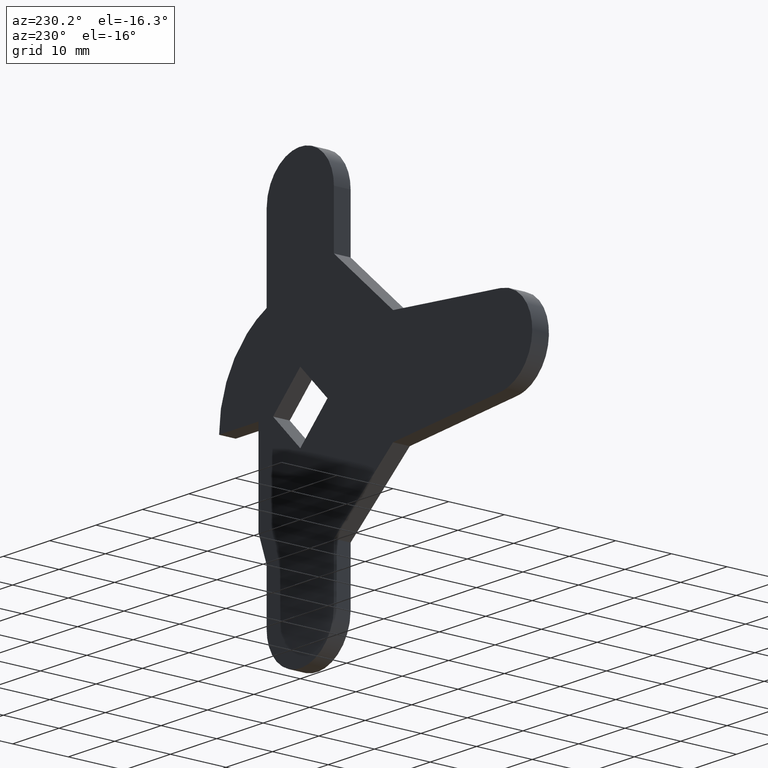
[diagram: clean part render]
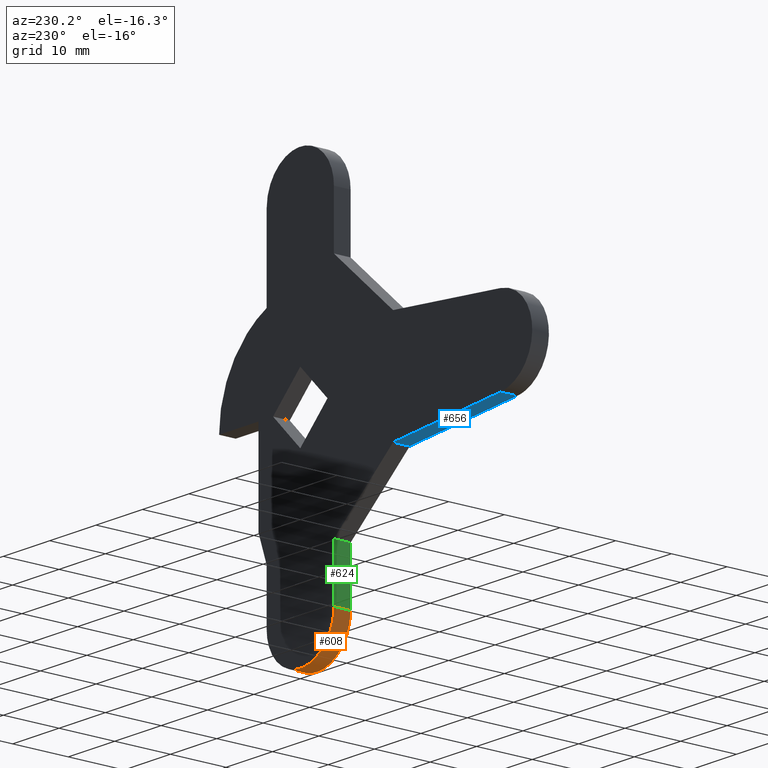
[diagram: same view with three faces highlighted in distinct colors, each labeled with its STEP entity id]
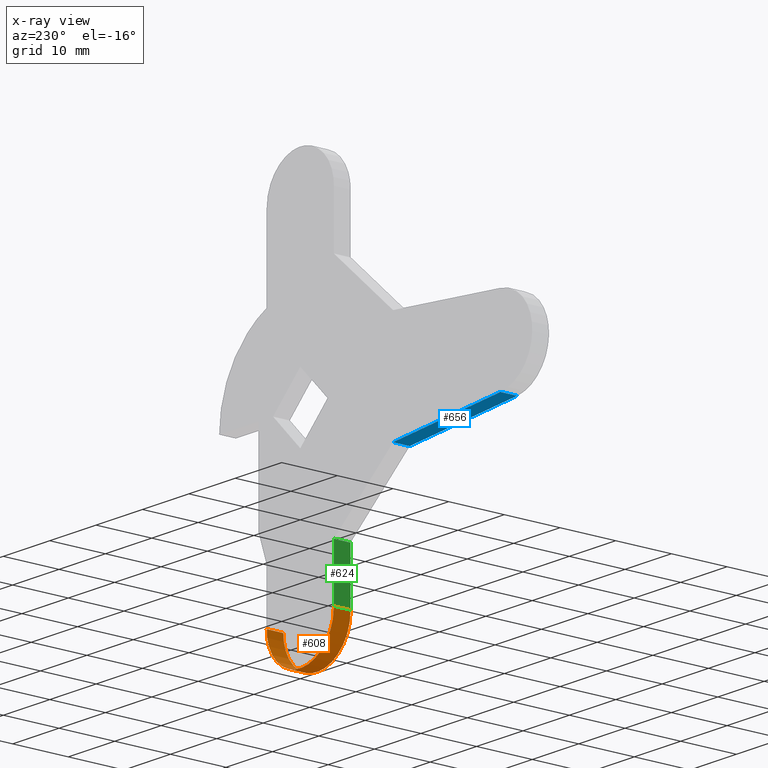
[diagram: x-ray of the same camera — body ghosted, the three highlighted faces saturated]
A machine part, auxiliary view with three faces highlighted in distinct colors.
The next image is the same camera in x-ray (body ghosted, the three faces saturated) — at least one of them is partly hidden behind the body in this view.
Their STEP definitions:

[orange] entity #608 — the highlighted face is a freeform B-spline surface patch.
#125=CARTESIAN_POINT('',(7.250000000000000,0.0,-30.250000000000000));
#126=VERTEX_POINT('',#125);
#132=CARTESIAN_POINT('',(-7.250000000000000,0.0,-30.250000000000000));
#133=VERTEX_POINT('',#132);
#134=CARTESIAN_POINT('',(-7.250000000000000,0.0,-30.250000000000000));
#135=CARTESIAN_POINT('',(-7.250000000000000,0.0,-37.499999999999993));
#136=CARTESIAN_POINT('',(0.0,0.0,-37.500000000000000));
#137=CARTESIAN_POINT('',(7.250000000000000,0.0,-37.499999999999993));
#138=CARTESIAN_POINT('',(7.250000000000000,0.0,-30.250000000000000));
#146=(BOUNDED_CURVE()B_SPLINE_CURVE(2,(#134,#135,#136,#137,#138),.UNSPECIFIED.,.F.,.U.)B_SPLINE_CURVE_WITH_KNOTS((3,2,3),(0.0,0.500000000000000,1.0),.UNSPECIFIED.)CURVE()GEOMETRIC_REPRESENTATION_ITEM()RATIONAL_B_SPLINE_CURVE((1.0,0.707106781186548,1.0,0.707106781186548,1.0))REPRESENTATION_ITEM(''));
#147=EDGE_CURVE('',#133,#126,#146,.T.);
#277=CARTESIAN_POINT('',(-7.250000000000000,-3.0,-30.250000000000000));
#278=VERTEX_POINT('',#277);
#284=CARTESIAN_POINT('',(7.250000000000000,-3.0,-30.250000000000000));
#285=VERTEX_POINT('',#284);
#286=CARTESIAN_POINT('',(-7.250000000000000,-3.0,-30.250000000000000));
#287=CARTESIAN_POINT('',(-7.250000000000000,-3.0,-37.499999999999993));
#288=CARTESIAN_POINT('',(0.0,-3.0,-37.500000000000000));
#289=CARTESIAN_POINT('',(7.250000000000000,-3.0,-37.499999999999993));
#290=CARTESIAN_POINT('',(7.250000000000000,-3.0,-30.250000000000000));
#298=(BOUNDED_CURVE()B_SPLINE_CURVE(2,(#286,#287,#288,#289,#290),.UNSPECIFIED.,.F.,.U.)B_SPLINE_CURVE_WITH_KNOTS((3,2,3),(0.0,0.500000000000000,1.0),.UNSPECIFIED.)CURVE()GEOMETRIC_REPRESENTATION_ITEM()RATIONAL_B_SPLINE_CURVE((1.0,0.707106781186548,1.0,0.707106781186548,1.0))REPRESENTATION_ITEM(''));
#299=EDGE_CURVE('',#278,#285,#298,.T.);
#572=CARTESIAN_POINT('',(7.250000000000000,-3.0,-30.250000000000000));
#573=CARTESIAN_POINT('',(7.250000000000000,0.0,-30.250000000000000));
#574=QUASI_UNIFORM_CURVE('',1,(#572,#573),.UNSPECIFIED.,.F.,.U.);
#575=EDGE_CURVE('',#285,#126,#574,.T.);
#580=CARTESIAN_POINT('',(-7.247515606072788,-3.075000000000001,-30.060217124767910));
#581=CARTESIAN_POINT('',(-7.247515606072788,0.076875000000000,-30.060217124767910));
#582=CARTESIAN_POINT('',(-7.445765383914885,-3.075000000000001,-37.631070696534827));
#583=CARTESIAN_POINT('',(-7.445765383914885,0.076875000000000,-37.631070696534827));
#584=CARTESIAN_POINT('',(0.126529946670296,-3.075000000000001,-37.498895789883832));
#585=CARTESIAN_POINT('',(0.126529946670296,0.076875000000000,-37.498895789883832));
#586=CARTESIAN_POINT('',(7.698825277255470,-3.075000000000001,-37.366720883232837));
#587=CARTESIAN_POINT('',(7.698825277255470,0.076875000000000,-37.366720883232837));
#588=CARTESIAN_POINT('',(7.236477288558529,-3.075000000000001,-29.807398088372299));
#589=CARTESIAN_POINT('',(7.236477288558529,0.076875000000000,-29.807398088372299));
#597=(BOUNDED_SURFACE()B_SPLINE_SURFACE(1,2,((#580,#582,#584,#586,#588),(#581,#583,#585,#587,#589)),.UNSPECIFIED.,.F.,.F.,.U.)B_SPLINE_SURFACE_WITH_KNOTS((2,2),(3,2,3),(0.0,3.151875000000001),(0.0,12.384506775234360,24.769013550468731),.UNSPECIFIED.)GEOMETRIC_REPRESENTATION_ITEM()RATIONAL_B_SPLINE_SURFACE(((1.0,0.691513055782269,1.0,0.691513055782269,1.0),(1.0,0.691513055782269,1.0,0.691513055782269,1.0)))REPRESENTATION_ITEM('')SURFACE());
#598=ORIENTED_EDGE('',*,*,#147,.T.);
#599=ORIENTED_EDGE('',*,*,#575,.F.);
#600=ORIENTED_EDGE('',*,*,#299,.F.);
#601=CARTESIAN_POINT('',(-7.250000000000000,-3.0,-30.250000000000000));
#602=CARTESIAN_POINT('',(-7.250000000000000,0.0,-30.250000000000000));
#603=QUASI_UNIFORM_CURVE('',1,(#601,#602),.UNSPECIFIED.,.F.,.U.);
#604=EDGE_CURVE('',#278,#133,#603,.T.);
#605=ORIENTED_EDGE('',*,*,#604,.T.);
#606=EDGE_LOOP('',(#598,#599,#600,#605));
#607=FACE_OUTER_BOUND('',#606,.T.);
#608=ADVANCED_FACE('',(#607),#597,.T.);

[blue] entity #656 — the highlighted face is a freeform B-spline surface patch.
#156=CARTESIAN_POINT('',(-20.0,0.0,-9.500000000000000));
#157=VERTEX_POINT('',#156);
#163=CARTESIAN_POINT('',(-43.154599674777700,0.0,-7.471400028493091));
#164=VERTEX_POINT('',#163);
#165=CARTESIAN_POINT('',(-43.154599674777700,0.0,-7.471400028493091));
#166=CARTESIAN_POINT('',(-20.0,0.0,-9.500000000000000));
#167=QUASI_UNIFORM_CURVE('',1,(#165,#166),.UNSPECIFIED.,.F.,.U.);
#168=EDGE_CURVE('',#164,#157,#167,.T.);
#246=CARTESIAN_POINT('',(-43.154599674777700,-3.0,-7.471400028493091));
#247=VERTEX_POINT('',#246);
#263=CARTESIAN_POINT('',(-20.0,-3.0,-9.500000000000000));
#264=VERTEX_POINT('',#263);
#265=CARTESIAN_POINT('',(-43.154599674777700,-3.0,-7.471400028493091));
#266=CARTESIAN_POINT('',(-20.0,-3.0,-9.500000000000000));
#267=QUASI_UNIFORM_CURVE('',1,(#265,#266),.UNSPECIFIED.,.F.,.U.);
#268=EDGE_CURVE('',#247,#264,#267,.T.);
#633=CARTESIAN_POINT('',(-20.0,-3.0,-9.500000000000000));
#634=CARTESIAN_POINT('',(-20.0,0.0,-9.500000000000000));
#635=QUASI_UNIFORM_CURVE('',1,(#633,#634),.UNSPECIFIED.,.F.,.U.);
#636=EDGE_CURVE('',#264,#157,#635,.T.);
#641=CARTESIAN_POINT('',(-44.311170362143052,-3.149849994185419,-7.370071597149453));
#642=CARTESIAN_POINT('',(-18.843427242452130,-3.149849994185419,-9.601328612714617));
#643=CARTESIAN_POINT('',(-44.311170362143052,0.149850074651688,-7.370071597149453));
#644=CARTESIAN_POINT('',(-18.843427242452130,0.149850074651688,-9.601328612714617));
#645=B_SPLINE_SURFACE_WITH_KNOTS('',1,1,((#641,#643),(#642,#644)),.UNSPECIFIED.,.F.,.F.,.U.,(2,2),(2,2),(0.0,25.565297719370939),(0.0,3.299700068837107),.UNSPECIFIED.);
#646=ORIENTED_EDGE('',*,*,#168,.T.);
#647=ORIENTED_EDGE('',*,*,#636,.F.);
#648=ORIENTED_EDGE('',*,*,#268,.F.);
#649=CARTESIAN_POINT('',(-43.154599674777700,-3.0,-7.471400028493091));
#650=CARTESIAN_POINT('',(-43.154599674777700,0.0,-7.471400028493091));
#651=QUASI_UNIFORM_CURVE('',1,(#649,#650),.UNSPECIFIED.,.F.,.U.);
#652=EDGE_CURVE('',#247,#164,#651,.T.);
#653=ORIENTED_EDGE('',*,*,#652,.T.);
#654=EDGE_LOOP('',(#646,#647,#648,#653));
#655=FACE_OUTER_BOUND('',#654,.T.);
#656=ADVANCED_FACE('',(#655),#645,.F.);

[green] entity #624 — the highlighted face is a freeform B-spline surface patch.
#132=CARTESIAN_POINT('',(-7.250000000000000,0.0,-30.250000000000000));
#133=VERTEX_POINT('',#132);
#149=CARTESIAN_POINT('',(-7.250000000000000,0.0,-20.500000000000000));
#150=VERTEX_POINT('',#149);
#151=CARTESIAN_POINT('',(-7.250000000000000,0.0,-20.500000000000000));
#152=CARTESIAN_POINT('',(-7.250000000000000,0.0,-30.250000000000000));
#153=QUASI_UNIFORM_CURVE('',1,(#151,#152),.UNSPECIFIED.,.F.,.U.);
#154=EDGE_CURVE('',#150,#133,#153,.T.);
#270=CARTESIAN_POINT('',(-7.250000000000000,-3.0,-20.500000000000000));
#271=VERTEX_POINT('',#270);
#277=CARTESIAN_POINT('',(-7.250000000000000,-3.0,-30.250000000000000));
#278=VERTEX_POINT('',#277);
#279=CARTESIAN_POINT('',(-7.250000000000000,-3.0,-20.500000000000000));
#280=CARTESIAN_POINT('',(-7.250000000000000,-3.0,-30.250000000000000));
#281=QUASI_UNIFORM_CURVE('',1,(#279,#280),.UNSPECIFIED.,.F.,.U.);
#282=EDGE_CURVE('',#271,#278,#281,.T.);
#601=CARTESIAN_POINT('',(-7.250000000000000,-3.0,-30.250000000000000));
#602=CARTESIAN_POINT('',(-7.250000000000000,0.0,-30.250000000000000));
#603=QUASI_UNIFORM_CURVE('',1,(#601,#602),.UNSPECIFIED.,.F.,.U.);
#604=EDGE_CURVE('',#278,#133,#603,.T.);
#609=CARTESIAN_POINT('',(-7.250000000000000,-3.149849994185418,-20.012987518897390));
#610=CARTESIAN_POINT('',(-7.250000000000000,-3.149849994185418,-30.737012742617988));
#611=CARTESIAN_POINT('',(-7.250000000000000,0.149850074651688,-20.012987518897390));
#612=CARTESIAN_POINT('',(-7.250000000000000,0.149850074651688,-30.737012742617988));
#613=B_SPLINE_SURFACE_WITH_KNOTS('',1,1,((#609,#611),(#610,#612)),.UNSPECIFIED.,.F.,.F.,.U.,(2,2),(2,2),(0.0,10.724025223720609),(0.0,3.299700068837106),.UNSPECIFIED.);
#614=ORIENTED_EDGE('',*,*,#154,.T.);
#615=ORIENTED_EDGE('',*,*,#604,.F.);
#616=ORIENTED_EDGE('',*,*,#282,.F.);
#617=CARTESIAN_POINT('',(-7.250000000000000,-3.0,-20.500000000000000));
#618=CARTESIAN_POINT('',(-7.250000000000000,0.0,-20.500000000000000));
#619=QUASI_UNIFORM_CURVE('',1,(#617,#618),.UNSPECIFIED.,.F.,.U.);
#620=EDGE_CURVE('',#271,#150,#619,.T.);
#621=ORIENTED_EDGE('',*,*,#620,.T.);
#622=EDGE_LOOP('',(#614,#615,#616,#621));
#623=FACE_OUTER_BOUND('',#622,.T.);
#624=ADVANCED_FACE('',(#623),#613,.F.);